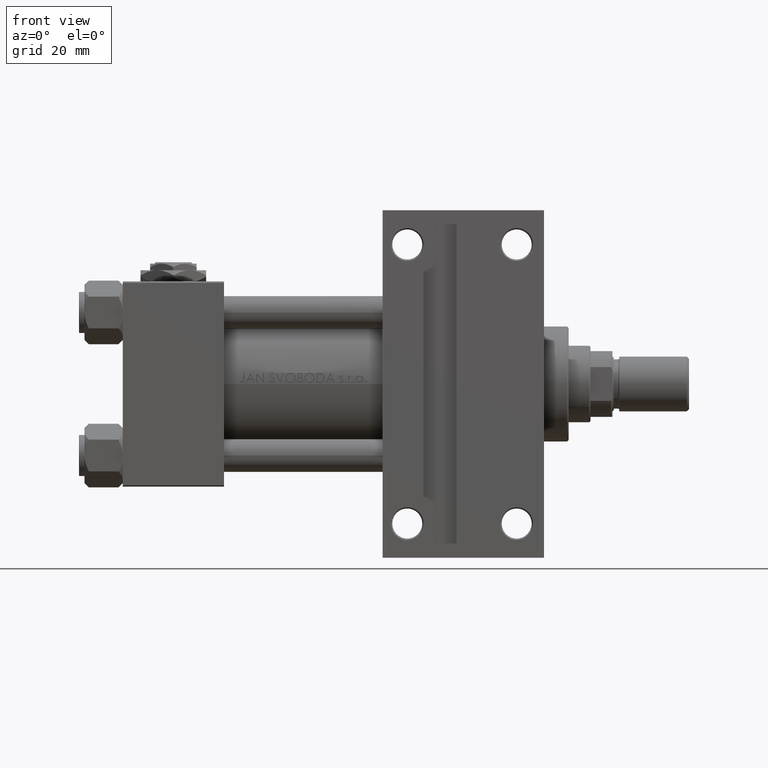
[diagram: clean part render]
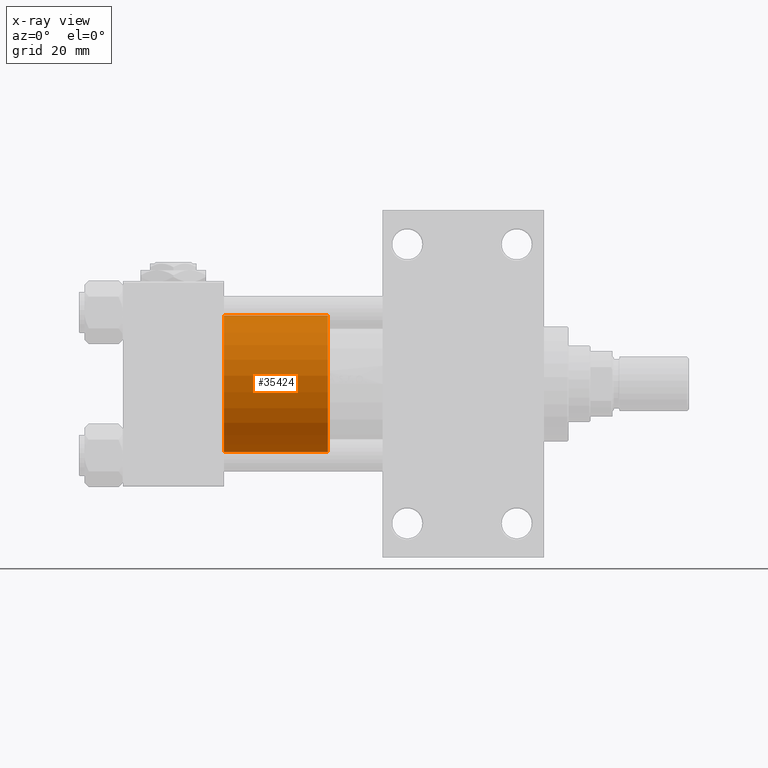
[diagram: x-ray — body ghosted, one internal face saturated and labeled with its STEP entity id]
A machine part, front view, then the same camera in x-ray: the body is ghosted and one INTERNAL B-rep face — a face not visible from any outside direction — is saturated and labeled: STEP entity #35424.
In plain terms, the highlighted cylindrical surface (partial cylindrical patch) has radius 25 mm, axis along (-1, 0, 0).
Its self-contained STEP definition (entity closure, byte-faithful):
#2668 = EDGE_CURVE ( 'NONE', #44599, #12924, #33640, .T. ) ;
#3153 = CARTESIAN_POINT ( 'NONE',  ( -25.00000000000000000, 0.000000000000000000, 38.00000000000000000 ) ) ;
#4377 = CIRCLE ( 'NONE', #34342, 25.00000000000000000 ) ;
#6124 = CYLINDRICAL_SURFACE ( 'NONE', #47649, 25.00000000000000000 ) ;
#6290 = DIRECTION ( 'NONE',  ( -0.000000000000000000, -0.000000000000000000, -1.000000000000000000 ) ) ;
#6727 = DIRECTION ( 'NONE',  ( -0.000000000000000000, -0.000000000000000000, -1.000000000000000000 ) ) ;
#7065 = EDGE_CURVE ( 'NONE', #35210, #12924, #35196, .T. ) ;
#7277 = DIRECTION ( 'NONE',  ( 1.000000000000000000, 0.000000000000000000, 0.000000000000000000 ) ) ;
#8418 = AXIS2_PLACEMENT_3D ( 'NONE', #27523, #28518, #12044 ) ;
#8676 = VERTEX_POINT ( 'NONE', #17215 ) ;
#9107 = VECTOR ( 'NONE', #6727, 1000.000000000000000 ) ;
#11636 = ORIENTED_EDGE ( 'NONE', *, *, #2668, .F. ) ;
#12044 = DIRECTION ( 'NONE',  ( 1.000000000000000000, 0.000000000000000000, 0.000000000000000000 ) ) ;
#12924 = VERTEX_POINT ( 'NONE', #45256 ) ;
#14432 = LINE ( 'NONE', #21776, #46705 ) ;
#14893 = EDGE_LOOP ( 'NONE', ( #31877, #20980, #18533, #11636 ) ) ;
#15012 = FACE_OUTER_BOUND ( 'NONE', #14893, .T. ) ;
#17215 = CARTESIAN_POINT ( 'NONE',  ( 25.00000000000000000, 3.061616997868383043E-15, 38.00000000000000000 ) ) ;
#18533 = ORIENTED_EDGE ( 'NONE', *, *, #7065, .T. ) ;
#19391 = EDGE_CURVE ( 'NONE', #8676, #44599, #4377, .T. ) ;
#19611 = CARTESIAN_POINT ( 'NONE',  ( 25.00000000000000000, 3.061616997868383043E-15, 0.000000000000000000 ) ) ;
#20980 = ORIENTED_EDGE ( 'NONE', *, *, #28590, .T. ) ;
#21776 = CARTESIAN_POINT ( 'NONE',  ( 25.00000000000000000, 3.061616997868383043E-15, 38.00000000000000000 ) ) ;
#25408 = DIRECTION ( 'NONE',  ( -0.000000000000000000, -0.000000000000000000, -1.000000000000000000 ) ) ;
#27523 = CARTESIAN_POINT ( 'NONE',  ( 0.000000000000000000, 0.000000000000000000, 0.000000000000000000 ) ) ;
#28518 = DIRECTION ( 'NONE',  ( 0.000000000000000000, 0.000000000000000000, 1.000000000000000000 ) ) ;
#28590 = EDGE_CURVE ( 'NONE', #8676, #35210, #14432, .T. ) ;
#31877 = ORIENTED_EDGE ( 'NONE', *, *, #19391, .F. ) ;
#33640 = LINE ( 'NONE', #45531, #9107 ) ;
#34273 = CARTESIAN_POINT ( 'NONE',  ( 0.000000000000000000, 0.000000000000000000, 38.00000000000000000 ) ) ;
#34342 = AXIS2_PLACEMENT_3D ( 'NONE', #38726, #46835, #7277 ) ;
#35196 = CIRCLE ( 'NONE', #8418, 25.00000000000000000 ) ;
#35210 = VERTEX_POINT ( 'NONE', #19611 ) ;
#35424 = ADVANCED_FACE ( 'NONE', ( #15012 ), #6124, .T. ) ;
#37079 = DIRECTION ( 'NONE',  ( -1.000000000000000000, 0.000000000000000000, 0.000000000000000000 ) ) ;
#38726 = CARTESIAN_POINT ( 'NONE',  ( 0.000000000000000000, 0.000000000000000000, 38.00000000000000000 ) ) ;
#44599 = VERTEX_POINT ( 'NONE', #3153 ) ;
#45256 = CARTESIAN_POINT ( 'NONE',  ( -25.00000000000000000, 0.000000000000000000, 0.000000000000000000 ) ) ;
#45531 = CARTESIAN_POINT ( 'NONE',  ( -25.00000000000000000, 0.000000000000000000, 38.00000000000000000 ) ) ;
#46705 = VECTOR ( 'NONE', #6290, 1000.000000000000000 ) ;
#46835 = DIRECTION ( 'NONE',  ( 0.000000000000000000, 0.000000000000000000, 1.000000000000000000 ) ) ;
#47649 = AXIS2_PLACEMENT_3D ( 'NONE', #34273, #25408, #37079 ) ;